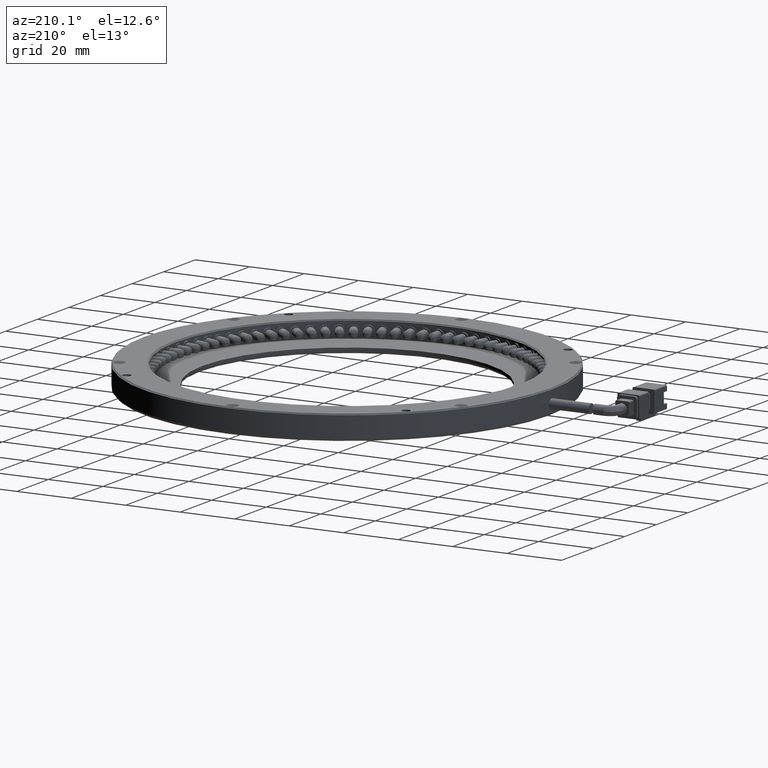
[diagram: clean part render]
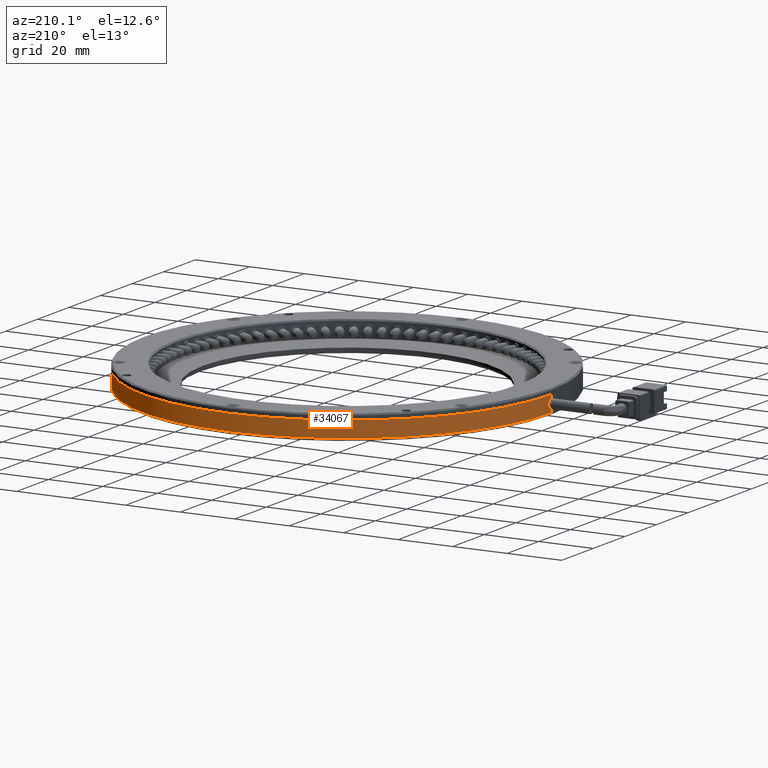
[diagram: same view with one face highlighted and labeled with its STEP entity id]
A machine part, auxiliary view. The second image highlights one B-rep face of the part: STEP entity #34067.
In plain terms, the highlighted cylindrical surface (partial cylindrical patch) has radius 75 mm, axis along (-0, -0, -1).
Its self-contained STEP definition (entity closure, byte-faithful):
#62 = DIRECTION ( 'NONE',  ( -0.0000000000000000000, -6.804568988770635500E-015, 1.000000000000000000 ) ) ;
#111 = CARTESIAN_POINT ( 'NONE',  ( -64.15718569520919300, 2.845784040264265800, 0.2705739323350450600 ) ) ;
#280 = EDGE_LOOP ( 'NONE', ( #31684, #53037, #13023, #69216, #16132, #16223, #49246, #25544, #18701, #37826, #64334, #68373, #15991, #40418 ) ) ;
#363 = CARTESIAN_POINT ( 'NONE',  ( -64.17649974751833500, 1.554441329128374300, 2.204396376914379700 ) ) ;
#838 = FACE_OUTER_BOUND ( 'NONE', #280, .T. ) ;
#997 = DIRECTION ( 'NONE',  ( -0.0000000000000000000, -0.0000000000000000000, -1.000000000000000000 ) ) ;
#1103 = CIRCLE ( 'NONE', #61384, 75.00000000000001400 ) ;
#1373 = EDGE_CURVE ( 'NONE', #72464, #50869, #76290, .T. ) ;
#1747 = CARTESIAN_POINT ( 'NONE',  ( 10.82239847715735200, 1.095939086294420100, 1.881266926062278500 ) ) ;
#1872 = CARTESIAN_POINT ( 'NONE',  ( 85.74258159485586400, 4.558276619965700300, 1.746677760756298200 ) ) ;
#1950 = CARTESIAN_POINT ( 'NONE',  ( 85.75009714310805000, 4.388738571937572900, -0.3444714630378937200 ) ) ;
#2016 = CARTESIAN_POINT ( 'NONE',  ( 85.61327012385648100, 6.695071809826015600, -0.05342082314213781500 ) ) ;
#2148 = VERTEX_POINT ( 'NONE', #44024 ) ;
#2159 = EDGE_CURVE ( 'NONE', #62365, #50004, #70138, .T. ) ;
#2318 = CARTESIAN_POINT ( 'NONE',  ( 85.58593526340877100, 7.046869031339358700, 1.230104135364656200 ) ) ;
#2360 = B_SPLINE_CURVE_WITH_KNOTS ( 'NONE', 3,
 ( #33177, #69544, #20935, #75724, #39267, #2828, #45397, #8957, #51488, #15084 ),
 .UNSPECIFIED., .F., .F.,
 ( 4, 2, 2, 2, 4 ),
 ( 0.0000000000000000000, 0.0001781455276854366000, 0.0003562910553708732000, 0.0005344365830563076700, 0.0007125821107417421800 ),
 .UNSPECIFIED. ) ;
#2362 = CARTESIAN_POINT ( 'NONE',  ( 85.57246421834504700, 7.214710487214031100, 0.4724769187422971400 ) ) ;
#2491 = VERTEX_POINT ( 'NONE', #4865 ) ;
#2828 = CARTESIAN_POINT ( 'NONE',  ( 85.52422649467446500, 7.777217999458087200, -0.2293130562746435500 ) ) ;
#2853 = B_SPLINE_CURVE_WITH_KNOTS ( 'NONE', 3,
 ( #23118, #59537, #65587, #29249, #71690, #35385, #77901, #41458 ),
 .UNSPECIFIED., .F., .F.,
 ( 4, 2, 2, 4 ),
 ( 0.0000000000000000000, 0.0002631081875671897100, 0.0005262163751343794300, 0.001052432750268758900 ),
 .UNSPECIFIED. ) ;
#2884 = CARTESIAN_POINT ( 'NONE',  ( 85.59137485120379600, 6.979025698614959700, 1.861284122017069100 ) ) ;
#2911 = EDGE_CURVE ( 'NONE', #22431, #40575, #77354, .T. ) ;
#3159 = CARTESIAN_POINT ( 'NONE',  ( 85.69339446705160400, 5.493177239584282400, 1.463997073509666300 ) ) ;
#3356 = CARTESIAN_POINT ( 'NONE',  ( 85.70384475185316800, 5.311268706839667800, -0.3280353995190593000 ) ) ;
#3574 = CARTESIAN_POINT ( 'NONE',  ( 85.46735494845359000, 8.385248726812310600, 0.3052451313797247000 ) ) ;
#4273 = CARTESIAN_POINT ( 'NONE',  ( 85.71165016811922000, 5.170246532691408000, 1.916150646992546400 ) ) ;
#4711 = EDGE_LOOP ( 'NONE', ( #44504, #17577, #51411, #64665, #64546, #71247, #52924, #69270, #33108, #5585 ) ) ;
#4770 = EDGE_CURVE ( 'NONE', #46269, #22627, #27873, .T. ) ;
#4864 = EDGE_CURVE ( 'NONE', #30600, #18187, #57347, .T. ) ;
#4865 = CARTESIAN_POINT ( 'NONE',  ( 85.64846584938456400, 6.200803590560445500, 1.090569251643724400 ) ) ;
#5357 = CARTESIAN_POINT ( 'NONE',  ( 85.73049999876060700, 4.808097012297963600, -0.1226339608918013000 ) ) ;
#5358 = CARTESIAN_POINT ( 'NONE',  ( 10.82239847715735200, 1.095939086294420100, 1.532429716759989600 ) ) ;
#5422 = CARTESIAN_POINT ( 'NONE',  ( 85.58575612820556000, 7.049137170891246900, 1.323725094349637000 ) ) ;
#5585 = ORIENTED_EDGE ( 'NONE', *, *, #38892, .T. ) ;
#6122 = DIRECTION ( 'NONE',  ( -0.0000000000000000000, -0.0000000000000000000, -1.000000000000000000 ) ) ;
#6213 = CARTESIAN_POINT ( 'NONE',  ( -64.15744734107639100, 2.834679593530885700, 0.7288483726947201400 ) ) ;
#6243 = CARTESIAN_POINT ( 'NONE',  ( 85.46454834682926100, 8.413688933989346800, 0.07894134466700925000 ) ) ;
#6482 = CARTESIAN_POINT ( 'NONE',  ( -64.17760152284266400, 1.095939086294413800, 2.249999999999931600 ) ) ;
#6522 = CARTESIAN_POINT ( 'NONE',  ( 85.46591878780225200, 8.399850993292945500, -0.1529008328245598800 ) ) ;
#6781 = CARTESIAN_POINT ( 'NONE',  ( 10.82239847715735200, 1.095939086294420100, 1.532429716759987400 ) ) ;
#6966 = EDGE_CURVE ( 'NONE', #19739, #28902, #20089, .T. ) ;
#7098 = DIRECTION ( 'NONE',  ( -0.0000000000000000000, 6.804568988770635500E-015, -1.000000000000000000 ) ) ;
#7318 = CARTESIAN_POINT ( 'NONE',  ( 85.55749214440480400, 7.394016137883291200, 1.916150646992560400 ) ) ;
#7808 = VECTOR ( 'NONE', #32582, 1000.000000000000000 ) ;
#7862 = DIRECTION ( 'NONE',  ( 8.525587643267346300E-014, 1.000000000000000000, 7.574959178432056600E-015 ) ) ;
#7974 = CARTESIAN_POINT ( 'NONE',  ( 85.72037207097453400, 5.009930506777845200, 1.905631102326019700 ) ) ;
#8043 = CARTESIAN_POINT ( 'NONE',  ( 85.75628390549923100, 4.244599473405182600, -0.1502553807688348800 ) ) ;
#8122 = CARTESIAN_POINT ( 'NONE',  ( 85.57444949520461800, 7.192453194037946100, -0.3354664441904998700 ) ) ;
#8599 = EDGE_CURVE ( 'NONE', #2491, #75843, #16357, .T. ) ;
#8743 = DIRECTION ( 'NONE',  ( -0.0000000000000000000, 6.663212063531339900E-015, -1.000000000000000000 ) ) ;
#8957 = CARTESIAN_POINT ( 'NONE',  ( 85.51588529690991400, 7.869688996189457200, -0.07597708798656095700 ) ) ;
#9014 = CARTESIAN_POINT ( 'NONE',  ( 85.56634895020339100, 7.288918311113902400, 1.914695853249524800 ) ) ;
#9028 = CARTESIAN_POINT ( 'NONE',  ( 85.68150632212675100, 5.690933390452384400, 1.090569251643721100 ) ) ;
#9210 = ORIENTED_EDGE ( 'NONE', *, *, #1373, .T. ) ;
#9296 = CARTESIAN_POINT ( 'NONE',  ( 85.70297478753252600, 5.327081371156655400, 1.546056791929100400 ) ) ;
#9505 = CARTESIAN_POINT ( 'NONE',  ( 85.58350968957468300, 7.078015308578138800, -0.6356882467442865900 ) ) ;
#9577 = B_SPLINE_CURVE_WITH_KNOTS ( 'NONE', 3,
 ( #76264, #33718, #45935, #9505, #52018, #15608, #58132, #21736, #64229, #27842 ),
 .UNSPECIFIED., .F., .F.,
 ( 4, 2, 2, 2, 4 ),
 ( 0.0000000000000000000, 0.0002875541741549244500, 0.0005751083483098489100, 0.0008626625224647734200, 0.001150216696619697800 ),
 .UNSPECIFIED. ) ;
#9726 = CARTESIAN_POINT ( 'NONE',  ( 85.46454834682926100, 8.413688933989346800, 0.07894134466700925000 ) ) ;
#9898 = EDGE_CURVE ( 'NONE', #22627, #2491, #41168, .T. ) ;
#10655 = ORIENTED_EDGE ( 'NONE', *, *, #47941, .T. ) ;
#10896 = CARTESIAN_POINT ( 'NONE',  ( 85.55657981451788900, 7.404832795536414400, 1.555685530713489800 ) ) ;
#11315 = CARTESIAN_POINT ( 'NONE',  ( 85.55657981451788900, 7.404832795536414400, 1.555685530713489800 ) ) ;
#11517 = CARTESIAN_POINT ( 'NONE',  ( 85.71603764462942400, 5.090007912112359800, -0.2969013905976059000 ) ) ;
#11518 = DIRECTION ( 'NONE',  ( -1.429874737131816000E-013, -1.000000000000000000, -6.756747938929662100E-015 ) ) ;
#11578 = CARTESIAN_POINT ( 'NONE',  ( 85.58593526340877100, 7.046869031339358700, 1.230104135364656200 ) ) ;
#11816 = AXIS2_PLACEMENT_3D ( 'NONE', #43549, #7098, #49654 ) ;
#11978 = VERTEX_POINT ( 'NONE', #54559 ) ;
#12103 = CARTESIAN_POINT ( 'NONE',  ( -64.17631727402043400, 1.548862813064827400, -1.194213056580401900 ) ) ;
#12382 = CARTESIAN_POINT ( 'NONE',  ( -64.15921619028435400, 2.757076887694246600, 1.062369380701858200 ) ) ;
#12412 = CARTESIAN_POINT ( 'NONE',  ( 85.46438512428439100, 8.415353828514325200, -0.03739514228120298400 ) ) ;
#12675 = CARTESIAN_POINT ( 'NONE',  ( 85.48282974726120600, 8.225442838419969100, -0.4546932816000492900 ) ) ;
#12911 = DIRECTION ( 'NONE',  ( -2.025000537623592500E-013, -1.000000000000000000, -9.008997251906216100E-015 ) ) ;
#13023 = ORIENTED_EDGE ( 'NONE', *, *, #2159, .T. ) ;
#13082 = DIRECTION ( 'NONE',  ( 0.0000000000000000000, 0.0000000000000000000, 1.000000000000000000 ) ) ;
#13176 = ORIENTED_EDGE ( 'NONE', *, *, #77680, .T. ) ;
#13450 = CARTESIAN_POINT ( 'NONE',  ( 85.51769994288605400, 7.849600237396815700, 1.137080879550713900 ) ) ;
#13469 = CARTESIAN_POINT ( 'NONE',  ( 85.51887240053424900, 7.837510290975521900, 1.838374444428891200 ) ) ;
#13724 = DIRECTION ( 'NONE',  ( -0.0000000000000000000, -0.0000000000000000000, -1.000000000000000000 ) ) ;
#13940 = EDGE_CURVE ( 'NONE', #71904, #47499, #41262, .T. ) ;
#14013 = AXIS2_PLACEMENT_3D ( 'NONE', #28534, #70993, #34649 ) ;
#14044 = CIRCLE ( 'NONE', #20064, 75.00000000000001400 ) ;
#14183 = CARTESIAN_POINT ( 'NONE',  ( 85.76033956209352000, 4.146425127969429500, 0.07008205367486984600 ) ) ;
#14216 = CARTESIAN_POINT ( 'NONE',  ( 85.58593526340877100, 7.046869031339358700, 1.230104135364656200 ) ) ;
#14562 = CARTESIAN_POINT ( 'NONE',  ( 85.58216645370347900, 7.094070326340913700, 1.035373196568201100 ) ) ;
#14850 = CARTESIAN_POINT ( 'NONE',  ( 85.55382189115601900, 7.437417976715300600, 0.4277785539693462800 ) ) ;
#14891 = EDGE_CURVE ( 'NONE', #50869, #36185, #49572, .T. ) ;
#15084 = CARTESIAN_POINT ( 'NONE',  ( 85.51475269276178900, 7.882117814465390300, 0.04405762373675878300 ) ) ;
#15225 = CARTESIAN_POINT ( 'NONE',  ( 85.82039042256055000, 1.644759783097001300, 1.532429716759993200 ) ) ;
#15309 = VERTEX_POINT ( 'NONE', #65081 ) ;
#15328 = VERTEX_POINT ( 'NONE', #71460 ) ;
#15422 = CARTESIAN_POINT ( 'NONE',  ( 85.70987398692894000, 5.202764109759980800, 1.555685530713472500 ) ) ;
#15524 = DIRECTION ( 'NONE',  ( -0.0000000000000000000, 6.804568988770635500E-015, -1.000000000000000000 ) ) ;
#15608 = CARTESIAN_POINT ( 'NONE',  ( 85.60436376792317500, 6.811285033781914900, -0.5276803122504228900 ) ) ;
#15635 = B_SPLINE_CURVE_WITH_KNOTS ( 'NONE', 3,
 ( #35724, #17092, #59906, #78240, #41823, #5357, #47898, #11517, #54012, #17595 ),
 .UNSPECIFIED., .F., .F.,
 ( 4, 2, 2, 2, 4 ),
 ( 0.0000000000000000000, 0.0003290551462983687400, 0.0006581102925967374700, 0.0009871654388951061600, 0.001316220585193474900 ),
 .UNSPECIFIED. ) ;
#15956 = LINE ( 'NONE', #55541, #46383 ) ;
#15991 = ORIENTED_EDGE ( 'NONE', *, *, #55017, .T. ) ;
#16023 = CARTESIAN_POINT ( 'NONE',  ( 85.52036745981722300, 7.820080096712868700, 0.2467743657567214600 ) ) ;
#16085 = EDGE_CURVE ( 'NONE', #28430, #62678, #38205, .T. ) ;
#16132 = ORIENTED_EDGE ( 'NONE', *, *, #65268, .T. ) ;
#16223 = ORIENTED_EDGE ( 'NONE', *, *, #16085, .T. ) ;
#16226 = B_SPLINE_CURVE_WITH_KNOTS ( 'NONE', 3,
 ( #26107, #62542, #68645, #32292, #74794, #38363, #1950, #44494, #8043, #50569, #14183, #56628, #20275, #62815 ),
 .UNSPECIFIED., .F., .F.,
 ( 4, 2, 2, 2, 2, 2, 4 ),
 ( 0.0000000000000000000, 0.0004796085187469080800, 0.0007194127781203600300, 0.0009592170374938121500, 0.001199021296867264300, 0.001438825556240716200, 0.001918434074987620000 ),
 .UNSPECIFIED. ) ;
#16357 = CIRCLE ( 'NONE', #40690, 75.00000000000001400 ) ;
#16531 = CARTESIAN_POINT ( 'NONE',  ( 85.69825760274845500, 5.410950155728764700, 1.901112523295561200 ) ) ;
#16716 = DIRECTION ( 'NONE',  ( -0.0000000000000000000, -0.0000000000000000000, -1.000000000000000000 ) ) ;
#16767 = CARTESIAN_POINT ( 'NONE',  ( -64.17760152284266400, 1.095939086294420100, 3.499999999999937400 ) ) ;
#16973 = EDGE_CURVE ( 'NONE', #38068, #52349, #73967, .T. ) ;
#16974 = VECTOR ( 'NONE', #997, 1000.000000000000000 ) ;
#17025 = FACE_BOUND ( 'NONE', #4711, .T. ) ;
#17092 = CARTESIAN_POINT ( 'NONE',  ( 85.74109641400249900, 4.587171939469059500, 0.4916234151908922500 ) ) ;
#17441 = CARTESIAN_POINT ( 'NONE',  ( 10.82239847715735200, 1.095939086294420100, 3.499999999999937400 ) ) ;
#17577 = ORIENTED_EDGE ( 'NONE', *, *, #4770, .T. ) ;
#17595 = CARTESIAN_POINT ( 'NONE',  ( 85.70384475185316800, 5.311268706839667800, -0.3280353995190593000 ) ) ;
#18150 = CARTESIAN_POINT ( 'NONE',  ( 85.73028825635047700, 4.812906604987129600, 1.408270254894529600 ) ) ;
#18187 = VERTEX_POINT ( 'NONE', #69924 ) ;
#18197 = CARTESIAN_POINT ( 'NONE',  ( -64.17366216220651200, 1.871900513010396100, -1.072748805248875400 ) ) ;
#18459 = CARTESIAN_POINT ( 'NONE',  ( -64.16224778660425400, 2.614765466892625200, 1.376736934311823600 ) ) ;
#18573 = CARTESIAN_POINT ( 'NONE',  ( 85.79983291384401400, 2.935592665736297800, 3.499999999999955600 ) ) ;
#18701 = ORIENTED_EDGE ( 'NONE', *, *, #46673, .T. ) ;
#18756 = CARTESIAN_POINT ( 'NONE',  ( 85.51166927441561000, 7.916923086171308900, -0.6142956655598131900 ) ) ;
#19225 = CARTESIAN_POINT ( 'NONE',  ( -64.17760152284266400, 1.095939086294420100, 3.499999999999937400 ) ) ;
#19295 = CARTESIAN_POINT ( 'NONE',  ( 85.76408291473212800, 4.052953401268913700, 0.6254529725739557100 ) ) ;
#19550 = CARTESIAN_POINT ( 'NONE',  ( 85.52516906148778700, 7.766520951071161200, 1.338185988017853000 ) ) ;
#19574 = CARTESIAN_POINT ( 'NONE',  ( 85.49269615595950700, 8.121233534810762900, 1.650374865286688500 ) ) ;
#19608 = CARTESIAN_POINT ( 'NONE',  ( -64.17760152284266400, 1.095939086294413800, 2.249999999999931600 ) ) ;
#19710 = ORIENTED_EDGE ( 'NONE', *, *, #45212, .T. ) ;
#19739 = VERTEX_POINT ( 'NONE', #64739 ) ;
#19890 = CARTESIAN_POINT ( 'NONE',  ( 85.82239847715736400, 1.095939086294429400, 3.499999999999937400 ) ) ;
#19929 = EDGE_LOOP ( 'NONE', ( #50369, #43769, #56239, #70227 ) ) ;
#20058 = EDGE_CURVE ( 'NONE', #36185, #61910, #57887, .T. ) ;
#20064 = AXIS2_PLACEMENT_3D ( 'NONE', #17441, #60003, #23573 ) ;
#20089 = LINE ( 'NONE', #29234, #52410 ) ;
#20126 = CARTESIAN_POINT ( 'NONE',  ( 85.82239847715736400, 1.095939086294429400, 3.499999999999937400 ) ) ;
#20275 = CARTESIAN_POINT ( 'NONE',  ( 85.76380260726902800, 4.060057429592656100, 0.4637432042427202000 ) ) ;
#20666 = CARTESIAN_POINT ( 'NONE',  ( 85.56892395853370200, 7.257438082710971900, 0.9112647017991184500 ) ) ;
#20935 = CARTESIAN_POINT ( 'NONE',  ( 85.54834886660899000, 7.501854481231997200, -0.3356100839878791200 ) ) ;
#20966 = CARTESIAN_POINT ( 'NONE',  ( 85.59812002527483800, 6.892545738829116300, 0.5864729204963087300 ) ) ;
#20997 = CARTESIAN_POINT ( 'NONE',  ( 85.62634100142418000, 6.515365515925713800, 1.230104135364652700 ) ) ;
#21694 = CARTESIAN_POINT ( 'NONE',  ( 85.54260023393537400, 7.569244266362255200, 0.8467972752543009300 ) ) ;
#21736 = CARTESIAN_POINT ( 'NONE',  ( 85.62143490545028600, 6.583157864560703800, -0.3495414962016575900 ) ) ;
#21895 = CARTESIAN_POINT ( 'NONE',  ( 85.74122283623991300, 4.584456916682782400, 0.6021971586204419900 ) ) ;
#22132 = CARTESIAN_POINT ( 'NONE',  ( 85.53569154040435800, 7.648174592361531400, 0.3789055607339342200 ) ) ;
#22258 = CARTESIAN_POINT ( 'NONE',  ( 85.82039042256055000, 1.644759783096986900, -0.6187330739377242500 ) ) ;
#22431 = VERTEX_POINT ( 'NONE', #56350 ) ;
#22472 = VERTEX_POINT ( 'NONE', #32730 ) ;
#22497 = VERTEX_POINT ( 'NONE', #57931 ) ;
#22627 = VERTEX_POINT ( 'NONE', #71977 ) ;
#22667 = CARTESIAN_POINT ( 'NONE',  ( 85.67762871736192700, 5.754664335060914100, 1.783849339613354100 ) ) ;
#22829 = B_SPLINE_CURVE_WITH_KNOTS ( 'NONE', 3,
 ( #20997, #57376, #69606, #33251, #75787, #39328, #2884, #45463, #9014, #51550 ),
 .UNSPECIFIED., .F., .F.,
 ( 4, 2, 2, 2, 4 ),
 ( 0.0000000000000000000, 0.0003112414288711303600, 0.0006224828577422607300, 0.0009337242866133911500, 0.001244965715484521500 ),
 .UNSPECIFIED. ) ;
#22898 = DIRECTION ( 'NONE',  ( -0.0000000000000000000, -0.0000000000000000000, -1.000000000000000000 ) ) ;
#23116 = EDGE_CURVE ( 'NONE', #36323, #69537, #76588, .T. ) ;
#23118 = CARTESIAN_POINT ( 'NONE',  ( 85.70384475185316800, 5.311268706839667800, -0.3280353995190593000 ) ) ;
#23235 = ORIENTED_EDGE ( 'NONE', *, *, #25547, .T. ) ;
#23573 = DIRECTION ( 'NONE',  ( -1.000000000000000000, 0.0000000000000000000, 0.0000000000000000000 ) ) ;
#24268 = CARTESIAN_POINT ( 'NONE',  ( 85.73800014214573700, 4.653285474603203300, 1.128122048712245000 ) ) ;
#24307 = CARTESIAN_POINT ( 'NONE',  ( -64.17007602798992100, 2.162623009860407100, -0.8920349465196285600 ) ) ;
#24560 = CARTESIAN_POINT ( 'NONE',  ( -64.16603006302712200, 2.415880627403558000, 1.654812266917435200 ) ) ;
#24866 = CARTESIAN_POINT ( 'NONE',  ( 85.54212341058968100, 7.574844169265256600, -0.6652447018446604500 ) ) ;
#24957 = CARTESIAN_POINT ( 'NONE',  ( 85.55749214440480400, 7.394016137883291200, 1.916150646992560400 ) ) ;
#25029 = CARTESIAN_POINT ( 'NONE',  ( 85.68481646236915600, 5.637461681645296700, -0.6067286376974057000 ) ) ;
#25195 = EDGE_CURVE ( 'NONE', #27394, #63707, #2360, .T. ) ;
#25503 = EDGE_CURVE ( 'NONE', #22472, #22497, #60683, .T. ) ;
#25544 = ORIENTED_EDGE ( 'NONE', *, *, #16973, .T. ) ;
#25547 = EDGE_CURVE ( 'NONE', #50085, #27394, #47263, .T. ) ;
#25556 = CYLINDRICAL_SURFACE ( 'NONE', #34730, 75.00000000000001400 ) ;
#25654 = CARTESIAN_POINT ( 'NONE',  ( 85.53451470470709200, 7.661082678879917100, 1.465289004641288100 ) ) ;
#25677 = CARTESIAN_POINT ( 'NONE',  ( 85.47593712001200600, 8.296763544746991000, 1.359307089440018100 ) ) ;
#25776 = DIRECTION ( 'NONE',  ( 0.0000000000000000000, 0.0000000000000000000, 1.000000000000000000 ) ) ;
#26023 = CARTESIAN_POINT ( 'NONE',  ( 85.76302581473748900, 4.079917948819633500, 0.9414665052236703700 ) ) ;
#26107 = CARTESIAN_POINT ( 'NONE',  ( 85.71046638832190500, 5.191947452107305200, -0.6652447018446755500 ) ) ;
#26212 = DIRECTION ( 'NONE',  ( -0.0000000000000000000, -0.0000000000000000000, -1.000000000000000000 ) ) ;
#26746 = CARTESIAN_POINT ( 'NONE',  ( 85.55198300067344500, 7.459051292020880900, 0.8696390190855857200 ) ) ;
#26843 = VERTEX_POINT ( 'NONE', #14216 ) ;
#27051 = CARTESIAN_POINT ( 'NONE',  ( 85.61892491159537100, 6.617014109375034500, 0.7923754904449682400 ) ) ;
#27394 = VERTEX_POINT ( 'NONE', #62221 ) ;
#27741 = CIRCLE ( 'NONE', #11816, 75.00000000000001400 ) ;
#27805 = CARTESIAN_POINT ( 'NONE',  ( 85.55198300067344500, 7.459051292020880900, 0.8696390190855857200 ) ) ;
#27842 = CARTESIAN_POINT ( 'NONE',  ( 85.63025414252013000, 6.461079415330900100, -0.2001284227748541300 ) ) ;
#27873 = B_SPLINE_CURVE_WITH_KNOTS ( 'NONE', 3,
 ( #68559, #62466, #26023, #32204, #74714, #38280, #1872, #44409, #7974, #50485 ),
 .UNSPECIFIED., .F., .F.,
 ( 4, 2, 2, 2, 4 ),
 ( 1.301042606982605500E-018, 0.0004718343931649071800, 0.0009436687863298130500, 0.001415503179494718800, 0.001887337572659624800 ),
 .UNSPECIFIED. ) ;
#28219 = VERTEX_POINT ( 'NONE', #72446 ) ;
#28244 = CARTESIAN_POINT ( 'NONE',  ( 85.55382189115601900, 7.437417976715300600, 0.4277785539693462800 ) ) ;
#28430 = VERTEX_POINT ( 'NONE', #74302 ) ;
#28534 = CARTESIAN_POINT ( 'NONE',  ( 10.82239847715735200, 1.095939086294420100, -2.500000000000089700 ) ) ;
#28783 = CARTESIAN_POINT ( 'NONE',  ( 85.66040607274757700, 6.022997729294595500, 1.537424559114557400 ) ) ;
#28902 = VERTEX_POINT ( 'NONE', #60968 ) ;
#28943 = B_SPLINE_CURVE_WITH_KNOTS ( 'NONE', 3,
 ( #9028, #63789, #33520, #76083, #39603, #3159, #45750, #9296, #51824, #15422 ),
 .UNSPECIFIED., .F., .F.,
 ( 4, 2, 2, 2, 4 ),
 ( 0.0000000000000000000, 0.0001822787806490271300, 0.0003645575612980542600, 0.0005468363419470814200, 0.0007291151225961085200 ),
 .UNSPECIFIED. ) ;
#29004 = VERTEX_POINT ( 'NONE', #61729 ) ;
#29033 = VERTEX_POINT ( 'NONE', #74216 ) ;
#29234 = CARTESIAN_POINT ( 'NONE',  ( 85.77545153947657800, 3.749208133556743800, 3.499999999999952000 ) ) ;
#29249 = CARTESIAN_POINT ( 'NONE',  ( 85.68376969073294400, 5.654676998034846100, -0.2628993264571111200 ) ) ;
#29675 = CARTESIAN_POINT ( 'NONE',  ( 85.56437121655487500, 7.312013063840178800, 1.552042340367891600 ) ) ;
#29743 = CARTESIAN_POINT ( 'NONE',  ( 85.51769994288605400, 7.849600237396815700, 1.137080879550713900 ) ) ;
#29907 = DIRECTION ( 'NONE',  ( -0.0000000000000000000, 6.952995436027395900E-015, -1.000000000000000000 ) ) ;
#30431 = CARTESIAN_POINT ( 'NONE',  ( 85.74084618631185600, 4.592577370694245400, 0.8144882120009927500 ) ) ;
#30478 = CARTESIAN_POINT ( 'NONE',  ( -64.16472828938128700, 2.494826370910634400, -0.5759807946237031100 ) ) ;
#30600 = VERTEX_POINT ( 'NONE', #40968 ) ;
#30728 = CARTESIAN_POINT ( 'NONE',  ( -64.17005402205187200, 2.164134769224698400, 1.890845348924354000 ) ) ;
#31184 = CARTESIAN_POINT ( 'NONE',  ( 85.70043691755242300, 5.372293763320101300, -0.6590222359865015600 ) ) ;
#31684 = ORIENTED_EDGE ( 'NONE', *, *, #65835, .F. ) ;
#31803 = CARTESIAN_POINT ( 'NONE',  ( 85.54718156770535100, 7.515387320096940500, 1.542545855847625900 ) ) ;
#31822 = CARTESIAN_POINT ( 'NONE',  ( 85.47090221431160700, 8.348586175741669300, 1.137080879550714100 ) ) ;
#32204 = CARTESIAN_POINT ( 'NONE',  ( 85.75964494529216600, 4.163649531573941700, 1.245162455931606100 ) ) ;
#32292 = CARTESIAN_POINT ( 'NONE',  ( 85.73826633260341600, 4.648175953279836600, -0.5355270289887076300 ) ) ;
#32417 = CARTESIAN_POINT ( 'NONE',  ( 85.82239847715736400, 1.095939086294429400, 1.532429716759989600 ) ) ;
#32582 = DIRECTION ( 'NONE',  ( 0.0000000000000000000, 0.0000000000000000000, 1.000000000000000000 ) ) ;
#32730 = CARTESIAN_POINT ( 'NONE',  ( 85.65214963128302400, 6.146517489965628300, 0.2301041353646483800 ) ) ;
#32946 = EDGE_CURVE ( 'NONE', #50004, #41567, #33147, .T. ) ;
#33108 = ORIENTED_EDGE ( 'NONE', *, *, #25503, .T. ) ;
#33147 = LINE ( 'NONE', #18573, #16974 ) ;
#33177 = CARTESIAN_POINT ( 'NONE',  ( 85.55840858489298700, 7.383131876120323500, -0.3396633064957805800 ) ) ;
#33199 = FACE_BOUND ( 'NONE', #19929, .T. ) ;
#33221 = CARTESIAN_POINT ( 'NONE',  ( 85.62734647348361200, 6.501487059391680000, 1.115523598219718000 ) ) ;
#33251 = CARTESIAN_POINT ( 'NONE',  ( 85.61782358324288100, 6.631867412764506800, 1.628842765550401000 ) ) ;
#33520 = CARTESIAN_POINT ( 'NONE',  ( 85.68347951260267300, 5.658741578750908600, 1.208800489260948700 ) ) ;
#33718 = CARTESIAN_POINT ( 'NONE',  ( 85.56019737072298900, 7.362580187775525300, -0.6705929790179664400 ) ) ;
#33941 = CARTESIAN_POINT ( 'NONE',  ( 85.50466598511843600, 7.992880531633694800, 0.6983124654467267600 ) ) ;
#34067 = ADVANCED_FACE ( 'NONE', ( #33199, #17025, #65467, #838 ), #25556, .T. ) ;
#34241 = EDGE_CURVE ( 'NONE', #75843, #29033, #28943, .T. ) ;
#34627 = CARTESIAN_POINT ( 'NONE',  ( 85.70505219314421200, 5.291522949617633900, 1.914492767225119700 ) ) ;
#34649 = DIRECTION ( 'NONE',  ( 1.000000000000000000, 0.0000000000000000000, 0.0000000000000000000 ) ) ;
#34730 = AXIS2_PLACEMENT_3D ( 'NONE', #42845, #6122, #37024 ) ;
#34905 = CARTESIAN_POINT ( 'NONE',  ( 85.65019775826245100, 6.175417621889007300, 1.209496512933094300 ) ) ;
#35385 = CARTESIAN_POINT ( 'NONE',  ( 85.66583456614552000, 5.941517292149489600, -0.05875272363212337400 ) ) ;
#35724 = CARTESIAN_POINT ( 'NONE',  ( 85.74122283623991300, 4.584456916682782400, 0.6021971586204419900 ) ) ;
#35731 = EDGE_CURVE ( 'NONE', #45796, #15309, #65889, .T. ) ;
#35786 = CARTESIAN_POINT ( 'NONE',  ( 85.57548447078910700, 7.176847029803914400, 1.512130392635849600 ) ) ;
#36185 = VERTEX_POINT ( 'NONE', #29743 ) ;
#36323 = VERTEX_POINT ( 'NONE', #61333 ) ;
#36526 = CARTESIAN_POINT ( 'NONE',  ( 10.82239847715735200, 1.095939086294420100, 1.881266926062272500 ) ) ;
#36539 = CARTESIAN_POINT ( 'NONE',  ( 85.74122283623991300, 4.584456916682782400, 0.6021971586204419900 ) ) ;
#36571 = CARTESIAN_POINT ( 'NONE',  ( -64.15829563789961300, 2.799797534432990600, 0.04030926949232197000 ) ) ;
#36573 = CARTESIAN_POINT ( 'NONE',  ( 85.51475269276178900, 7.882117814465390300, 0.04405762373675878300 ) ) ;
#36828 = CARTESIAN_POINT ( 'NONE',  ( -64.17365622032254200, 1.872482464408237000, 2.072467236856808900 ) ) ;
#37002 = DIRECTION ( 'NONE',  ( -0.0000000000000000000, -0.0000000000000000000, -1.000000000000000000 ) ) ;
#37024 = DIRECTION ( 'NONE',  ( -1.000000000000000000, 0.0000000000000000000, 0.0000000000000000000 ) ) ;
#37251 = EDGE_CURVE ( 'NONE', #38587, #77684, #15635, .T. ) ;
#37279 = CARTESIAN_POINT ( 'NONE',  ( 85.71046638832190500, 5.191947452107305200, -0.6652447018446755500 ) ) ;
#37314 = CARTESIAN_POINT ( 'NONE',  ( -64.17760152284266400, 1.095939086294420100, -2.500000000000089700 ) ) ;
#37476 = B_SPLINE_CURVE_WITH_KNOTS ( 'NONE', 3,
 ( #76651, #70461, #52434, #16023, #58532, #22132, #64622, #28244 ),
 .UNSPECIFIED., .F., .F.,
 ( 4, 2, 2, 4 ),
 ( 0.0000000000000000000, 0.0001610029784808046200, 0.0003220059569616092300, 0.0006440119139232184600 ),
 .UNSPECIFIED. ) ;
#37639 = DIRECTION ( 'NONE',  ( -0.0000000000000000000, -0.0000000000000000000, -1.000000000000000000 ) ) ;
#37641 = CARTESIAN_POINT ( 'NONE',  ( 85.51910201506660800, 7.834093358703754900, 1.189900362365503800 ) ) ;
#37826 = ORIENTED_EDGE ( 'NONE', *, *, #35731, .T. ) ;
#37922 = CARTESIAN_POINT ( 'NONE',  ( 85.55657981451788900, 7.404832795536414400, 1.555685530713489800 ) ) ;
#38068 = VERTEX_POINT ( 'NONE', #22258 ) ;
#38205 = LINE ( 'NONE', #67888, #70485 ) ;
#38273 = CARTESIAN_POINT ( 'NONE',  ( 85.68150632212675100, 5.690933390452384400, 1.090569251643721100 ) ) ;
#38280 = CARTESIAN_POINT ( 'NONE',  ( 85.74845840717979700, 4.426891529336969300, 1.646971550318758300 ) ) ;
#38341 = AXIS2_PLACEMENT_3D ( 'NONE', #6781, #49295, #12911 ) ;
#38363 = CARTESIAN_POINT ( 'NONE',  ( 85.74747750607217300, 4.448064863175265100, -0.4013368487209715800 ) ) ;
#38587 = VERTEX_POINT ( 'NONE', #21895 ) ;
#38603 = AXIS2_PLACEMENT_3D ( 'NONE', #1747, #44290, #7862 ) ;
#38740 = CARTESIAN_POINT ( 'NONE',  ( 85.58624266238298600, 7.043007074514176400, 1.178834870566936500 ) ) ;
#38842 = EDGE_CURVE ( 'NONE', #29004, #19739, #66709, .T. ) ;
#38892 = EDGE_CURVE ( 'NONE', #22497, #28219, #77868, .T. ) ;
#39049 = CARTESIAN_POINT ( 'NONE',  ( 85.56333837768777100, 7.325270542858255900, 0.4473735952365120400 ) ) ;
#39267 = CARTESIAN_POINT ( 'NONE',  ( 85.53323718989507500, 7.675694090356714100, -0.2937632348092235600 ) ) ;
#39328 = CARTESIAN_POINT ( 'NONE',  ( 85.59918659522907100, 6.878641428093961200, 1.825291350577643100 ) ) ;
#39603 = CARTESIAN_POINT ( 'NONE',  ( 85.68845128318693600, 5.576550778942841000, 1.373520268463047400 ) ) ;
#39768 = CARTESIAN_POINT ( 'NONE',  ( 85.82239847715736400, 1.095939086294429400, 1.881266926062278500 ) ) ;
#39790 = ORIENTED_EDGE ( 'NONE', *, *, #4864, .T. ) ;
#39944 = CARTESIAN_POINT ( 'NONE',  ( 85.79983291384401400, 2.935592665736317400, 1.532429716760003800 ) ) ;
#40025 = CARTESIAN_POINT ( 'NONE',  ( 85.47886100068939200, 8.266445700858621800, 0.4993057350370859200 ) ) ;
#40418 = ORIENTED_EDGE ( 'NONE', *, *, #13940, .F. ) ;
#40575 = VERTEX_POINT ( 'NONE', #42512 ) ;
#40654 = ORIENTED_EDGE ( 'NONE', *, *, #20058, .T. ) ;
#40690 = AXIS2_PLACEMENT_3D ( 'NONE', #51921, #15524, #58030 ) ;
#40968 = CARTESIAN_POINT ( 'NONE',  ( 85.55382189115601900, 7.437417976715300600, 0.4277785539693462800 ) ) ;
#41168 = B_SPLINE_CURVE_WITH_KNOTS ( 'NONE', 3,
 ( #4273, #34627, #16531, #59076, #22667, #65120, #28783, #71235, #34905, #77455 ),
 .UNSPECIFIED., .F., .F.,
 ( 4, 2, 2, 2, 4 ),
 ( 0.0000000000000000000, 0.0003607513604821310500, 0.0007215027209642620900, 0.001082254081446393200, 0.001443005441928524200 ),
 .UNSPECIFIED. ) ;
#41262 = LINE ( 'NONE', #16767, #71631 ) ;
#41458 = CARTESIAN_POINT ( 'NONE',  ( 85.65214963128302400, 6.146517489965628300, 0.2301041353646483800 ) ) ;
#41567 = VERTEX_POINT ( 'NONE', #39944 ) ;
#41657 = VECTOR ( 'NONE', #25776, 1000.000000000000000 ) ;
#41823 = CARTESIAN_POINT ( 'NONE',  ( 85.73649325478957900, 4.685116385669998000, 0.06229449883486120500 ) ) ;
#41887 = CARTESIAN_POINT ( 'NONE',  ( 85.58342432324457100, 7.078349063358267300, 1.412979274396820600 ) ) ;
#42348 = CARTESIAN_POINT ( 'NONE',  ( 85.70987398692894000, 5.202764109759980800, 1.555685530713472500 ) ) ;
#42393 = CARTESIAN_POINT ( 'NONE',  ( -64.17760152284266400, 1.095939086294420100, -1.250000000000064400 ) ) ;
#42512 = CARTESIAN_POINT ( 'NONE',  ( 85.46454834682926100, 8.413688933989346800, 0.07894134466700925000 ) ) ;
#42605 = DIRECTION ( 'NONE',  ( -3.099835203338822200E-013, 1.000000000000000000, 6.805898437415671900E-015 ) ) ;
#42664 = CARTESIAN_POINT ( 'NONE',  ( -64.15718028118449500, 2.846016006774390000, 0.6129344644818458500 ) ) ;
#42845 = CARTESIAN_POINT ( 'NONE',  ( 10.82239847715735200, 1.095939086294420100, 3.499999999999937400 ) ) ;
#42924 = CARTESIAN_POINT ( 'NONE',  ( -64.17760152284269300, 1.327153028143808900, 2.249999999999933800 ) ) ;
#43547 = EDGE_CURVE ( 'NONE', #29033, #38587, #46753, .T. ) ;
#43549 = CARTESIAN_POINT ( 'NONE',  ( 10.82239847715735200, 1.095939086294420100, -0.6187330739377263600 ) ) ;
#43584 = B_SPLINE_CURVE_WITH_KNOTS ( 'NONE', 3,
 ( #6243, #12412, #6522, #49041, #12675, #55135, #18756, #61299, #24866, #67341 ),
 .UNSPECIFIED., .F., .F.,
 ( 4, 2, 2, 2, 4 ),
 ( 0.0000000000000000000, 0.0003438516339914165500, 0.0006877032679828330900, 0.001031554901974249300, 0.001375406535965663400 ),
 .UNSPECIFIED. ) ;
#43769 = ORIENTED_EDGE ( 'NONE', *, *, #38842, .T. ) ;
#44024 = CARTESIAN_POINT ( 'NONE',  ( 85.55198300067344500, 7.459051292020888000, -0.6652447018446611100 ) ) ;
#44290 = DIRECTION ( 'NONE',  ( -0.0000000000000000000, -7.575289211764191400E-015, 1.000000000000000000 ) ) ;
#44384 = EDGE_CURVE ( 'NONE', #26843, #22431, #69072, .T. ) ;
#44409 = CARTESIAN_POINT ( 'NONE',  ( 85.72843005312157100, 4.852007925811949300, 1.874974287247705100 ) ) ;
#44494 = CARTESIAN_POINT ( 'NONE',  ( 85.75446820164101800, 4.287722699461308000, -0.2196701746464283800 ) ) ;
#44504 = ORIENTED_EDGE ( 'NONE', *, *, #78365, .T. ) ;
#44552 = ORIENTED_EDGE ( 'NONE', *, *, #14891, .T. ) ;
#44587 = CARTESIAN_POINT ( 'NONE',  ( 85.58911290672195100, 7.008906390167959800, -0.2704685028220033500 ) ) ;
#44925 = EDGE_CURVE ( 'NONE', #63707, #30600, #37476, .T. ) ;
#45185 = CARTESIAN_POINT ( 'NONE',  ( 10.82239847715735200, 1.095939086294420100, -0.6187330739377272500 ) ) ;
#45212 = EDGE_CURVE ( 'NONE', #11978, #50085, #15956, .T. ) ;
#45397 = CARTESIAN_POINT ( 'NONE',  ( 85.52051227867689000, 7.818472509758554300, -0.1835392285245514600 ) ) ;
#45463 = CARTESIAN_POINT ( 'NONE',  ( 85.57499151202786400, 7.183662032832719600, 1.905729125419449100 ) ) ;
#45594 = ORIENTED_EDGE ( 'NONE', *, *, #2911, .T. ) ;
#45750 = CARTESIAN_POINT ( 'NONE',  ( 85.69643198758593900, 5.441325086166377100, 1.500537510464560400 ) ) ;
#45796 = VERTEX_POINT ( 'NONE', #32417 ) ;
#45935 = CARTESIAN_POINT ( 'NONE',  ( 85.56814934549977600, 7.266977311126107800, -0.6667971167038820900 ) ) ;
#46152 = CARTESIAN_POINT ( 'NONE',  ( 85.46454834682926100, 8.413688933989346800, 0.1930373517710189100 ) ) ;
#46269 = VERTEX_POINT ( 'NONE', #19295 ) ;
#46383 = VECTOR ( 'NONE', #13082, 1000.000000000000000 ) ;
#46420 = DIRECTION ( 'NONE',  ( -0.0000000000000000000, -0.0000000000000000000, -1.000000000000000000 ) ) ;
#46673 = EDGE_CURVE ( 'NONE', #52349, #45796, #1103, .T. ) ;
#46753 = B_SPLINE_CURVE_WITH_KNOTS ( 'NONE', 3,
 ( #42348, #48449, #54554, #18150, #60693, #24268, #66730, #30431, #72883, #36539 ),
 .UNSPECIFIED., .F., .F.,
 ( 4, 2, 2, 2, 4 ),
 ( 0.0000000000000000000, 0.0003183065607530491600, 0.0006366131215060983300, 0.0009549196822591474300, 0.001273226243012196700 ),
 .UNSPECIFIED. ) ;
#47263 = B_SPLINE_CURVE_WITH_KNOTS ( 'NONE', 3,
 ( #56465, #62360, #2016, #44587, #8122, #50644 ),
 .UNSPECIFIED., .F., .F.,
 ( 4, 2, 4 ),
 ( 0.0000000000000000000, 0.0005626812746980399100, 0.001125362549396079800 ),
 .UNSPECIFIED. ) ;
#47499 = VERTEX_POINT ( 'NONE', #19608 ) ;
#47898 = CARTESIAN_POINT ( 'NONE',  ( 85.72630692502220000, 4.892552414875603400, -0.1982387295972852500 ) ) ;
#47900 = DIRECTION ( 'NONE',  ( -0.0000000000000000000, 6.757381405368177900E-015, -1.000000000000000000 ) ) ;
#47941 = EDGE_CURVE ( 'NONE', #40575, #2148, #43584, .T. ) ;
#47955 = CARTESIAN_POINT ( 'NONE',  ( 85.58606086792164500, 7.045291019548590900, 1.276991541258582400 ) ) ;
#48042 = CIRCLE ( 'NONE', #14013, 75.00000000000001400 ) ;
#48449 = CARTESIAN_POINT ( 'NONE',  ( 85.71573886229981600, 5.095818791126586900, 1.551562638756804200 ) ) ;
#48493 = CARTESIAN_POINT ( 'NONE',  ( -64.17733441740416800, 1.325220513060931600, -1.238656898499247200 ) ) ;
#48747 = CARTESIAN_POINT ( 'NONE',  ( -64.15846824452347600, 2.790082865065141200, 0.9532846633655034400 ) ) ;
#49041 = CARTESIAN_POINT ( 'NONE',  ( 85.47510498030933900, 8.305354129492833700, -0.3654404759591365300 ) ) ;
#49213 = CARTESIAN_POINT ( 'NONE',  ( 85.65214963128302400, 6.146517489965676300, -0.2466400506818331500 ) ) ;
#49246 = ORIENTED_EDGE ( 'NONE', *, *, #58061, .T. ) ;
#49295 = DIRECTION ( 'NONE',  ( -0.0000000000000000000, 9.009841873820301300E-015, -1.000000000000000000 ) ) ;
#49416 = CIRCLE ( 'NONE', #38341, 75.00000000000001400 ) ;
#49572 = CIRCLE ( 'NONE', #77174, 75.00000000000001400 ) ;
#49654 = DIRECTION ( 'NONE',  ( -1.527713141176907900E-013, -1.000000000000000000, -6.804452834519024300E-015 ) ) ;
#49761 = VECTOR ( 'NONE', #37002, 1000.000000000000000 ) ;
#49840 = CARTESIAN_POINT ( 'NONE',  ( 85.81477244671998500, 2.165446640857760800, -0.6187330739377201500 ) ) ;
#49856 = CARTESIAN_POINT ( 'NONE',  ( 85.53824616566160400, 7.619289688687733700, 1.899507957399644700 ) ) ;
#50004 = VERTEX_POINT ( 'NONE', #74362 ) ;
#50085 = VERTEX_POINT ( 'NONE', #63414 ) ;
#50136 = CARTESIAN_POINT ( 'NONE',  ( 85.65214963128302400, 6.146517489965628300, 3.500000000000011100 ) ) ;
#50369 = ORIENTED_EDGE ( 'NONE', *, *, #67708, .T. ) ;
#50485 = CARTESIAN_POINT ( 'NONE',  ( 85.71165016811922000, 5.170246532691408000, 1.916150646992546400 ) ) ;
#50569 = CARTESIAN_POINT ( 'NONE',  ( 85.75921642377402100, 4.174017002276131400, -0.005171606683428008200 ) ) ;
#50644 = CARTESIAN_POINT ( 'NONE',  ( 85.55840858489298700, 7.383131876120323500, -0.3396633064957805800 ) ) ;
#50869 = VERTEX_POINT ( 'NONE', #52938 ) ;
#50953 = CARTESIAN_POINT ( 'NONE',  ( 85.58568070910276000, 7.050107053887177100, 1.126573936929329500 ) ) ;
#51285 = DIRECTION ( 'NONE',  ( 0.0000000000000000000, -1.000000000000000000, -6.662783750647585300E-015 ) ) ;
#51411 = ORIENTED_EDGE ( 'NONE', *, *, #9898, .T. ) ;
#51488 = CARTESIAN_POINT ( 'NONE',  ( 85.51490840947320700, 7.880403912100946200, -0.01599243688546100900 ) ) ;
#51550 = CARTESIAN_POINT ( 'NONE',  ( 85.55749214440480400, 7.394016137883291200, 1.916150646992560400 ) ) ;
#51571 = AXIS2_PLACEMENT_3D ( 'NONE', #36526, #62, #42605 ) ;
#51592 = VECTOR ( 'NONE', #26212, 1000.000000000000000 ) ;
#51824 = CARTESIAN_POINT ( 'NONE',  ( 85.70646657540740400, 5.264897861603082600, 1.555685530713472900 ) ) ;
#51921 = CARTESIAN_POINT ( 'NONE',  ( 10.82239847715735200, 1.095939086294420100, 1.090569251643689800 ) ) ;
#52018 = CARTESIAN_POINT ( 'NONE',  ( 85.59095442293406100, 6.984109755697547300, -0.6076133681604807300 ) ) ;
#52349 = VERTEX_POINT ( 'NONE', #15225 ) ;
#52410 = VECTOR ( 'NONE', #16716, 1000.000000000000000 ) ;
#52434 = CARTESIAN_POINT ( 'NONE',  ( 85.51580544391340800, 7.870568091706175600, 0.1525449449113665800 ) ) ;
#52541 = CARTESIAN_POINT ( 'NONE',  ( -64.17760152284266400, 1.095939086294420100, 3.499999999999937400 ) ) ;
#52924 = ORIENTED_EDGE ( 'NONE', *, *, #37251, .T. ) ;
#52938 = CARTESIAN_POINT ( 'NONE',  ( 85.47090221431160700, 8.348586175741669300, 1.137080879550714100 ) ) ;
#53037 = ORIENTED_EDGE ( 'NONE', *, *, #55478, .T. ) ;
#53136 = ORIENTED_EDGE ( 'NONE', *, *, #44384, .T. ) ;
#53382 = B_SPLINE_CURVE_WITH_KNOTS ( 'NONE', 3,
 ( #11315, #59971, #29675, #72126, #35786, #78304, #41887, #5422, #47955, #11578 ),
 .UNSPECIFIED., .F., .F.,
 ( 4, 2, 2, 2, 4 ),
 ( 0.0000000000000000000, 0.0001392861036195307300, 0.0002785722072390614600, 0.0004178583108585921900, 0.0005571444144781229200 ),
 .UNSPECIFIED. ) ;
#54012 = CARTESIAN_POINT ( 'NONE',  ( 85.71009021527021300, 5.200323804442635200, -0.3207454181537956500 ) ) ;
#54554 = CARTESIAN_POINT ( 'NONE',  ( 85.72132731953095700, 4.989299713287124400, 1.524176576279314000 ) ) ;
#54559 = CARTESIAN_POINT ( 'NONE',  ( 85.63025414252013000, 6.461079415330900100, -0.2001284227748541300 ) ) ;
#54591 = CARTESIAN_POINT ( 'NONE',  ( -64.17555533283174900, 1.659988617485706100, -1.160573113875375400 ) ) ;
#54853 = CARTESIAN_POINT ( 'NONE',  ( -64.16110453020559100, 2.669531688190592200, 1.274237973008328400 ) ) ;
#55000 = CARTESIAN_POINT ( 'NONE',  ( 85.82239847715736400, 1.095939086294429400, 3.499999999999937400 ) ) ;
#55017 = EDGE_CURVE ( 'NONE', #36323, #47499, #63486, .T. ) ;
#55135 = CARTESIAN_POINT ( 'NONE',  ( 85.50141026811215300, 8.028111842069469300, -0.5786663632736160900 ) ) ;
#55141 = ORIENTED_EDGE ( 'NONE', *, *, #25195, .T. ) ;
#55478 = EDGE_CURVE ( 'NONE', #67184, #62365, #69650, .T. ) ;
#55541 = CARTESIAN_POINT ( 'NONE',  ( 85.63025414252013000, 6.461079415330900100, 3.500000000000021300 ) ) ;
#55946 = CARTESIAN_POINT ( 'NONE',  ( 85.50935955707480200, 7.941810993960884500, 1.790197974517537800 ) ) ;
#56239 = ORIENTED_EDGE ( 'NONE', *, *, #6966, .T. ) ;
#56350 = CARTESIAN_POINT ( 'NONE',  ( 85.55198300067344500, 7.459051292020880900, 0.8696390190855857200 ) ) ;
#56465 = CARTESIAN_POINT ( 'NONE',  ( 85.63025414252011600, 6.461079415330958800, 0.2417320423413817600 ) ) ;
#56628 = CARTESIAN_POINT ( 'NONE',  ( 85.76299132774001100, 4.080810903052869400, 0.3018867300238762300 ) ) ;
#57039 = CARTESIAN_POINT ( 'NONE',  ( 85.57919538683015000, 7.131094524322285200, 0.9968778030030225300 ) ) ;
#57347 = B_SPLINE_CURVE_WITH_KNOTS ( 'NONE', 3,
 ( #14850, #39049, #2362, #57350, #20966, #63489, #27051, #69581, #33221, #75763 ),
 .UNSPECIFIED., .F., .F.,
 ( 4, 2, 2, 2, 4 ),
 ( 0.0000000000000000000, 0.0003405568085651301000, 0.0006811136171302602100, 0.001021670425695390300, 0.001362227234260520400 ),
 .UNSPECIFIED. ) ;
#57350 = CARTESIAN_POINT ( 'NONE',  ( 85.58979646648438700, 6.999149202339014100, 0.5418487738255984800 ) ) ;
#57376 = CARTESIAN_POINT ( 'NONE',  ( 85.62597265482789100, 6.520449776774204200, 1.335416441849464700 ) ) ;
#57887 = B_SPLINE_CURVE_WITH_KNOTS ( 'NONE', 3,
 ( #13450, #37641, #74030, #19550, #62072, #25654, #68159, #31803, #74295, #37922 ),
 .UNSPECIFIED., .F., .F.,
 ( 4, 2, 2, 2, 4 ),
 ( 0.0000000000000000000, 0.0001630378163895703000, 0.0003260756327791406100, 0.0004891134491687109100, 0.0006521512655582812100 ),
 .UNSPECIFIED. ) ;
#57931 = CARTESIAN_POINT ( 'NONE',  ( 85.65214963128302400, 6.146517489965676300, -0.2466400506818331500 ) ) ;
#58030 = DIRECTION ( 'NONE',  ( 0.0000000000000000000, -1.000000000000000000, -6.805898437415671900E-015 ) ) ;
#58061 = EDGE_CURVE ( 'NONE', #62678, #38068, #59802, .T. ) ;
#58132 = CARTESIAN_POINT ( 'NONE',  ( 85.61051763473780300, 6.730000977434754000, -0.4750223705680188800 ) ) ;
#58532 = CARTESIAN_POINT ( 'NONE',  ( 85.52384849178957900, 7.781397434964453000, 0.2865401357152470000 ) ) ;
#58968 = EDGE_CURVE ( 'NONE', #61910, #26843, #53382, .T. ) ;
#59076 = CARTESIAN_POINT ( 'NONE',  ( 85.68447640247100600, 5.643783523934319000, 1.836020528911882300 ) ) ;
#59537 = CARTESIAN_POINT ( 'NONE',  ( 85.69885401472720300, 5.399924552908485600, -0.3324894013550582200 ) ) ;
#59802 = CIRCLE ( 'NONE', #64941, 75.00000000000001400 ) ;
#59906 = CARTESIAN_POINT ( 'NONE',  ( 85.74060859201789200, 4.597708266502436000, 0.3822633824445483800 ) ) ;
#59971 = CARTESIAN_POINT ( 'NONE',  ( 85.56051704384231000, 7.358192984523685500, 1.555685530713489100 ) ) ;
#60003 = DIRECTION ( 'NONE',  ( 0.0000000000000000000, 0.0000000000000000000, 1.000000000000000000 ) ) ;
#60683 = LINE ( 'NONE', #50136, #74965 ) ;
#60693 = CARTESIAN_POINT ( 'NONE',  ( 85.73361178171110500, 4.744528867741007800, 1.319627264999895000 ) ) ;
#60746 = CARTESIAN_POINT ( 'NONE',  ( -64.17254035220459200, 1.972407555903408700, -1.019005894296440800 ) ) ;
#60968 = CARTESIAN_POINT ( 'NONE',  ( 85.77545153947657800, 3.749208133556766900, -0.6187330739377082700 ) ) ;
#61013 = CARTESIAN_POINT ( 'NONE',  ( -64.16470531755146600, 2.488157947474693100, 1.566408865755257300 ) ) ;
#61299 = CARTESIAN_POINT ( 'NONE',  ( 85.53205908681199800, 7.689845860200836800, -0.6577020505407585900 ) ) ;
#61333 = CARTESIAN_POINT ( 'NONE',  ( -64.17760152284266400, 1.095939086294420100, -1.250000000000064400 ) ) ;
#61384 = AXIS2_PLACEMENT_3D ( 'NONE', #5358, #47900, #11518 ) ;
#61459 = CARTESIAN_POINT ( 'NONE',  ( 85.66927740037265000, 5.888947719723438100, -0.5052194006168216900 ) ) ;
#61665 = ORIENTED_EDGE ( 'NONE', *, *, #58968, .T. ) ;
#61729 = CARTESIAN_POINT ( 'NONE',  ( 85.79176449676579400, 3.239337933448679200, 1.881266926062287200 ) ) ;
#61910 = VERTEX_POINT ( 'NONE', #10896 ) ;
#62072 = CARTESIAN_POINT ( 'NONE',  ( 85.52787608819210200, 7.736197853643506800, 1.385067924659423500 ) ) ;
#62095 = CARTESIAN_POINT ( 'NONE',  ( 85.48585190726883800, 8.193222134843319200, 1.560249905011269300 ) ) ;
#62196 = CARTESIAN_POINT ( 'NONE',  ( 85.82039042256055000, 1.644759783096986900, 3.499999999999940900 ) ) ;
#62221 = CARTESIAN_POINT ( 'NONE',  ( 85.55840858489298700, 7.383131876120323500, -0.3396633064957805800 ) ) ;
#62360 = CARTESIAN_POINT ( 'NONE',  ( 85.62242167044513500, 6.570290061195493100, 0.08663746957507562100 ) ) ;
#62365 = VERTEX_POINT ( 'NONE', #39768 ) ;
#62466 = CARTESIAN_POINT ( 'NONE',  ( 85.76380396376370600, 4.060023050997011200, 0.7848510675663845600 ) ) ;
#62542 = CARTESIAN_POINT ( 'NONE',  ( 85.71929084638046000, 5.030608276171257400, -0.6565729850599176800 ) ) ;
#62678 = VERTEX_POINT ( 'NONE', #49840 ) ;
#62815 = CARTESIAN_POINT ( 'NONE',  ( 85.76408291473212800, 4.052953401268913700, 0.6254529725739557100 ) ) ;
#62860 = CARTESIAN_POINT ( 'NONE',  ( 85.79176449676579400, 3.239337933448679200, 3.499999999999948900 ) ) ;
#63190 = CARTESIAN_POINT ( 'NONE',  ( 85.56054389099868700, 7.358510588592764600, 0.8858044792301405000 ) ) ;
#63414 = CARTESIAN_POINT ( 'NONE',  ( 85.63025414252011600, 6.461079415330958800, 0.2417320423413817600 ) ) ;
#63486 = B_SPLINE_CURVE_WITH_KNOTS ( 'NONE', 3,
 ( #42393, #78821, #48493, #12103, #54591, #18197, #60746, #24307, #66775, #30478, #72926, #36571, #111, #42664, #6213, #48747, #12382, #54853, #18459, #61013, #24560, #67031, #30728, #73202, #36828, #363, #42924, #6482 ),
 .UNSPECIFIED., .F., .F.,
 ( 4, 2, 2, 2, 2, 2, 2, 2, 2, 2, 2, 2, 2, 4 ),
 ( 0.005470357491635789700, 0.005812254888678368100, 0.006154152285720946400, 0.006496049682763525700, 0.006837947079806104000, 0.007521741873891260800, 0.008205536667976416600, 0.008547434065018996700, 0.008889331462061573300, 0.009231228859104153400, 0.009573126256146730100, 0.009915023653189308400, 0.01025692105023188700, 0.01094071584431704000 ),
 .UNSPECIFIED. ) ;
#63489 = CARTESIAN_POINT ( 'NONE',  ( 85.61268758135908300, 6.701457566839728500, 0.7108312916110654000 ) ) ;
#63707 = VERTEX_POINT ( 'NONE', #36573 ) ;
#63789 = CARTESIAN_POINT ( 'NONE',  ( 85.68236644346437500, 5.676920768953632300, 1.150557925380190300 ) ) ;
#64191 = CARTESIAN_POINT ( 'NONE',  ( 85.53310130919592800, 7.677901349634305800, 0.8185969920315044900 ) ) ;
#64229 = CARTESIAN_POINT ( 'NONE',  ( 85.62612479731733100, 6.518656187041920600, -0.2781801025778196700 ) ) ;
#64334 = ORIENTED_EDGE ( 'NONE', *, *, #66286, .F. ) ;
#64546 = ORIENTED_EDGE ( 'NONE', *, *, #34241, .T. ) ;
#64622 = CARTESIAN_POINT ( 'NONE',  ( 85.54484731577321100, 7.543179235955194400, 0.4083990393058911100 ) ) ;
#64665 = ORIENTED_EDGE ( 'NONE', *, *, #8599, .T. ) ;
#64739 = CARTESIAN_POINT ( 'NONE',  ( 85.77545153947657800, 3.749208133556743800, 1.881266926062290500 ) ) ;
#64769 = EDGE_CURVE ( 'NONE', #28902, #15328, #27741, .T. ) ;
#64941 = AXIS2_PLACEMENT_3D ( 'NONE', #45185, #8743, #51285 ) ;
#65081 = CARTESIAN_POINT ( 'NONE',  ( 85.82239847715736400, 1.095939086294429400, -2.500000000000089700 ) ) ;
#65120 = CARTESIAN_POINT ( 'NONE',  ( 85.66545761522813500, 5.946270426808838200, 1.633155076523562300 ) ) ;
#65268 = EDGE_CURVE ( 'NONE', #41567, #28430, #49416, .T. ) ;
#65467 = FACE_BOUND ( 'NONE', #78867, .T. ) ;
#65587 = CARTESIAN_POINT ( 'NONE',  ( 85.69374825315824800, 5.487746691875480000, -0.3201846108358007400 ) ) ;
#65835 = EDGE_CURVE ( 'NONE', #67184, #71904, #14044, .T. ) ;
#65889 = LINE ( 'NONE', #55000, #49761 ) ;
#66234 = CARTESIAN_POINT ( 'NONE',  ( 10.82239847715735200, 1.095939086294420100, 1.137080879550663500 ) ) ;
#66286 = EDGE_CURVE ( 'NONE', #69537, #15309, #48042, .T. ) ;
#66709 = CIRCLE ( 'NONE', #51571, 75.00000000000001400 ) ;
#66730 = CARTESIAN_POINT ( 'NONE',  ( 85.73926044653839500, 4.626389355304830500, 1.023968722299614600 ) ) ;
#66738 = EDGE_CURVE ( 'NONE', #18187, #72464, #22829, .T. ) ;
#66775 = CARTESIAN_POINT ( 'NONE',  ( -64.16872406090023200, 2.252683252493468100, -0.8181323948411262100 ) ) ;
#66866 = EDGE_CURVE ( 'NONE', #77684, #22472, #2853, .T. ) ;
#67031 = CARTESIAN_POINT ( 'NONE',  ( -64.16872510365769200, 2.252677900903040900, 1.818253525899463400 ) ) ;
#67184 = VERTEX_POINT ( 'NONE', #19890 ) ;
#67247 = CARTESIAN_POINT ( 'NONE',  ( 85.65955118150787900, 6.036855562714571000, -0.3924791085724572700 ) ) ;
#67341 = CARTESIAN_POINT ( 'NONE',  ( 85.55198300067344500, 7.459051292020888000, -0.6652447018446611100 ) ) ;
#67539 = CARTESIAN_POINT ( 'NONE',  ( 85.69012430927008900, 5.549193933325620200, -0.6299687222553627100 ) ) ;
#67708 = EDGE_CURVE ( 'NONE', #15328, #29004, #78243, .T. ) ;
#67888 = CARTESIAN_POINT ( 'NONE',  ( 85.81477244671998500, 2.165446640857727500, 3.499999999999945800 ) ) ;
#68159 = CARTESIAN_POINT ( 'NONE',  ( 85.53851502967748400, 7.615482848410752400, 1.498635839079678300 ) ) ;
#68176 = CARTESIAN_POINT ( 'NONE',  ( 85.47278456151426000, 8.329211952722479500, 1.249531344543382700 ) ) ;
#68373 = ORIENTED_EDGE ( 'NONE', *, *, #23116, .F. ) ;
#68559 = CARTESIAN_POINT ( 'NONE',  ( 85.76408291473212800, 4.052953401268913700, 0.6254529725739557100 ) ) ;
#68645 = CARTESIAN_POINT ( 'NONE',  ( 85.72736683940286200, 4.873277809031983500, -0.6288183887472862400 ) ) ;
#69072 = B_SPLINE_CURVE_WITH_KNOTS ( 'NONE', 3,
 ( #2318, #38740, #50953, #14562, #57039, #20666, #63190, #26746 ),
 .UNSPECIFIED., .F., .F.,
 ( 4, 2, 2, 4 ),
 ( 0.0000000000000000000, 0.0001526496386352963700, 0.0003052992772705927500, 0.0006105985545411859300 ),
 .UNSPECIFIED. ) ;
#69216 = ORIENTED_EDGE ( 'NONE', *, *, #32946, .T. ) ;
#69270 = ORIENTED_EDGE ( 'NONE', *, *, #66866, .T. ) ;
#69537 = VERTEX_POINT ( 'NONE', #37314 ) ;
#69544 = CARTESIAN_POINT ( 'NONE',  ( 85.55339383942475700, 7.442742274676379400, -0.3396633064957795300 ) ) ;
#69581 = CARTESIAN_POINT ( 'NONE',  ( 85.62641391409479800, 6.514602258931393700, 0.9983058496314941600 ) ) ;
#69606 = CARTESIAN_POINT ( 'NONE',  ( 85.62456315097722400, 6.540044095072731900, 1.437536205612962100 ) ) ;
#69650 = LINE ( 'NONE', #20126, #51592 ) ;
#69924 = CARTESIAN_POINT ( 'NONE',  ( 85.62634100142418000, 6.515365515925713800, 1.230104135364652700 ) ) ;
#70138 = CIRCLE ( 'NONE', #38603, 75.00000000000001400 ) ;
#70227 = ORIENTED_EDGE ( 'NONE', *, *, #64769, .T. ) ;
#70296 = CARTESIAN_POINT ( 'NONE',  ( 85.51410503318128100, 7.890077489507759400, 0.7441503104487929800 ) ) ;
#70461 = CARTESIAN_POINT ( 'NONE',  ( 85.51475269276180300, 7.882117814465386700, 0.09833294523471444700 ) ) ;
#70485 = VECTOR ( 'NONE', #37639, 1000.000000000000000 ) ;
#70993 = DIRECTION ( 'NONE',  ( 0.0000000000000000000, 0.0000000000000000000, -1.000000000000000000 ) ) ;
#71235 = CARTESIAN_POINT ( 'NONE',  ( 85.65278493696352800, 6.137422005559373300, 1.324651496669644300 ) ) ;
#71247 = ORIENTED_EDGE ( 'NONE', *, *, #43547, .T. ) ;
#71460 = CARTESIAN_POINT ( 'NONE',  ( 85.79176449676579400, 3.239337933448679200, -0.6187330739377120400 ) ) ;
#71631 = VECTOR ( 'NONE', #22898, 1000.000000000000000 ) ;
#71690 = CARTESIAN_POINT ( 'NONE',  ( 85.67899586537868100, 5.732178499505995900, -0.2186353966747918700 ) ) ;
#71904 = VERTEX_POINT ( 'NONE', #19225 ) ;
#71977 = CARTESIAN_POINT ( 'NONE',  ( 85.71165016811922000, 5.170246532691408000, 1.916150646992546400 ) ) ;
#72126 = CARTESIAN_POINT ( 'NONE',  ( 85.57184834604321100, 7.221443879377149600, 1.530630557235648000 ) ) ;
#72358 = DIRECTION ( 'NONE',  ( 1.527713141176907900E-013, -1.000000000000000000, -6.953349932873700500E-015 ) ) ;
#72446 = CARTESIAN_POINT ( 'NONE',  ( 85.71046638832190500, 5.191947452107305200, -0.6652447018446755500 ) ) ;
#72464 = VERTEX_POINT ( 'NONE', #24957 ) ;
#72883 = CARTESIAN_POINT ( 'NONE',  ( 85.74116555206873600, 4.585687141944184500, 0.7086522643759404200 ) ) ;
#72926 = CARTESIAN_POINT ( 'NONE',  ( -64.16205956965426100, 2.625211793493406300, -0.3807804300869775400 ) ) ;
#73202 = CARTESIAN_POINT ( 'NONE',  ( -64.17251315748761400, 1.974689776181371800, 2.017659390864295200 ) ) ;
#73340 = ORIENTED_EDGE ( 'NONE', *, *, #44925, .T. ) ;
#73663 = CARTESIAN_POINT ( 'NONE',  ( 85.70550861730686200, 5.282591283686916700, -0.6652447018446749900 ) ) ;
#73967 = LINE ( 'NONE', #62196, #41657 ) ;
#74030 = CARTESIAN_POINT ( 'NONE',  ( 85.52081281393418500, 7.815127352819761300, 1.241048167901908700 ) ) ;
#74050 = CARTESIAN_POINT ( 'NONE',  ( 85.54793157312538200, 7.507465081779962200, 1.912926396741569300 ) ) ;
#74216 = CARTESIAN_POINT ( 'NONE',  ( 85.70987398692894000, 5.202764109759980800, 1.555685530713472500 ) ) ;
#74295 = CARTESIAN_POINT ( 'NONE',  ( 85.55190220552968600, 7.460243029796309600, 1.553691176691353900 ) ) ;
#74302 = CARTESIAN_POINT ( 'NONE',  ( 85.81477244671998500, 2.165446640857727500, 1.532429716759996500 ) ) ;
#74362 = CARTESIAN_POINT ( 'NONE',  ( 85.79983291384401400, 2.935592665736297800, 1.881266926062292300 ) ) ;
#74676 = VECTOR ( 'NONE', #46420, 1000.000000000000000 ) ;
#74714 = CARTESIAN_POINT ( 'NONE',  ( 85.75694861392193500, 4.230089149045356000, 1.395247904257803000 ) ) ;
#74794 = CARTESIAN_POINT ( 'NONE',  ( 85.74156195678047300, 4.577771682309554900, -0.4965976644851552400 ) ) ;
#74965 = VECTOR ( 'NONE', #13724, 1000.000000000000000 ) ;
#75724 = CARTESIAN_POINT ( 'NONE',  ( 85.53827750510325200, 7.618272620792669000, -0.3127182383159786700 ) ) ;
#75763 = CARTESIAN_POINT ( 'NONE',  ( 85.62634100142418000, 6.515365515925713800, 1.230104135364652700 ) ) ;
#75787 = CARTESIAN_POINT ( 'NONE',  ( 85.61250277776606800, 6.703789506278177200, 1.709626074460812700 ) ) ;
#75843 = VERTEX_POINT ( 'NONE', #38273 ) ;
#76083 = CARTESIAN_POINT ( 'NONE',  ( 85.68649360600751700, 5.609017959873675400, 1.319685156415308900 ) ) ;
#76264 = CARTESIAN_POINT ( 'NONE',  ( 85.55198300067344500, 7.459051292020888000, -0.6652447018446611100 ) ) ;
#76290 = B_SPLINE_CURVE_WITH_KNOTS ( 'NONE', 3,
 ( #7318, #74050, #49856, #13469, #55946, #19574, #62095, #25677, #68176, #31822 ),
 .UNSPECIFIED., .F., .F.,
 ( 4, 2, 2, 2, 4 ),
 ( 0.0000000000000000000, 0.0003388901469546860000, 0.0006777802939093746000, 0.001016670440864063000, 0.001355560587818751800 ),
 .UNSPECIFIED. ) ;
#76481 = CARTESIAN_POINT ( 'NONE',  ( 85.48709745703423800, 8.180542651453643900, 0.5768355480302569400 ) ) ;
#76588 = LINE ( 'NONE', #52541, #74676 ) ;
#76651 = CARTESIAN_POINT ( 'NONE',  ( 85.51475269276178900, 7.882117814465390300, 0.04405762373675878300 ) ) ;
#77174 = AXIS2_PLACEMENT_3D ( 'NONE', #66234, #29907, #72358 ) ;
#77354 = B_SPLINE_CURVE_WITH_KNOTS ( 'NONE', 3,
 ( #27805, #21694, #64191, #70296, #33941, #76481, #40025, #3574, #46152, #9726 ),
 .UNSPECIFIED., .F., .F.,
 ( 4, 2, 2, 2, 4 ),
 ( 0.0000000000000000000, 0.0003378820057506438500, 0.0006757640115012850900, 0.001013646017251926400, 0.001351528023002567800 ),
 .UNSPECIFIED. ) ;
#77455 = CARTESIAN_POINT ( 'NONE',  ( 85.64846584938456400, 6.200803590560445500, 1.090569251643724400 ) ) ;
#77680 = EDGE_CURVE ( 'NONE', #2148, #11978, #9577, .T. ) ;
#77684 = VERTEX_POINT ( 'NONE', #3356 ) ;
#77868 = B_SPLINE_CURVE_WITH_KNOTS ( 'NONE', 3,
 ( #49213, #67247, #61459, #25029, #67539, #31184, #73663, #37279 ),
 .UNSPECIFIED., .F., .F.,
 ( 4, 2, 2, 4 ),
 ( 0.0000000000000000000, 0.0005431440541593563200, 0.0008147160812390319400, 0.001086288108318707700 ),
 .UNSPECIFIED. ) ;
#77901 = CARTESIAN_POINT ( 'NONE',  ( 85.65853093038289500, 6.051971680452366400, 0.08106064510655296200 ) ) ;
#78240 = CARTESIAN_POINT ( 'NONE',  ( 85.73831648915870600, 4.646407030796770400, 0.1678306298991276100 ) ) ;
#78243 = LINE ( 'NONE', #62860, #7808 ) ;
#78304 = CARTESIAN_POINT ( 'NONE',  ( 85.58131209924029300, 7.104777662482260500, 1.453454754232406100 ) ) ;
#78365 = EDGE_CURVE ( 'NONE', #28219, #46269, #16226, .T. ) ;
#78821 = CARTESIAN_POINT ( 'NONE',  ( -64.17760152284266400, 1.211546039022340900, -1.250000000000065300 ) ) ;
#78867 = EDGE_LOOP ( 'NONE', ( #45594, #10655, #13176, #19710, #23235, #55141, #73340, #39790, #78904, #9210, #44552, #40654, #61665, #53136 ) ) ;
#78904 = ORIENTED_EDGE ( 'NONE', *, *, #66738, .T. ) ;